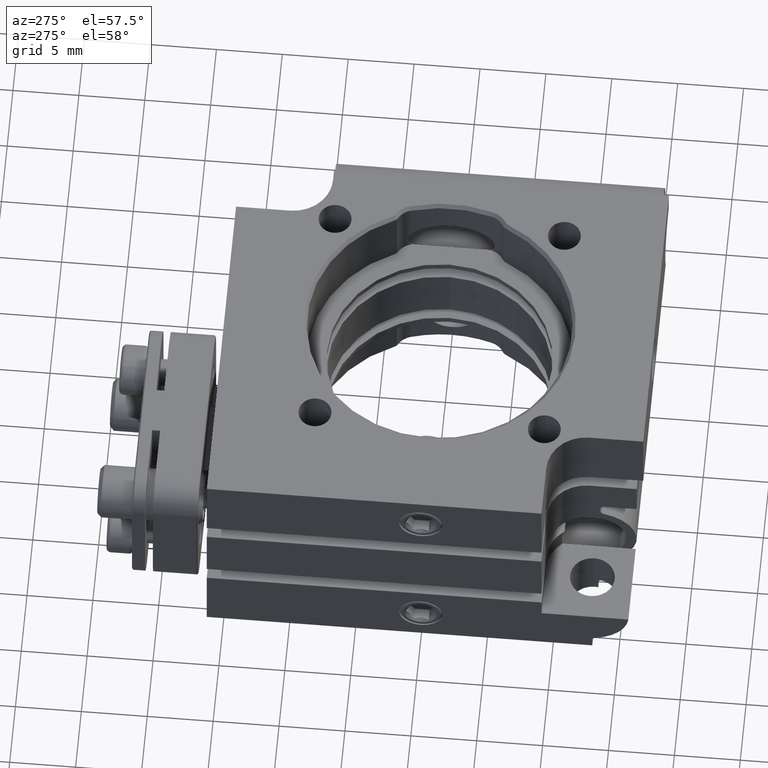
[diagram: clean part render]
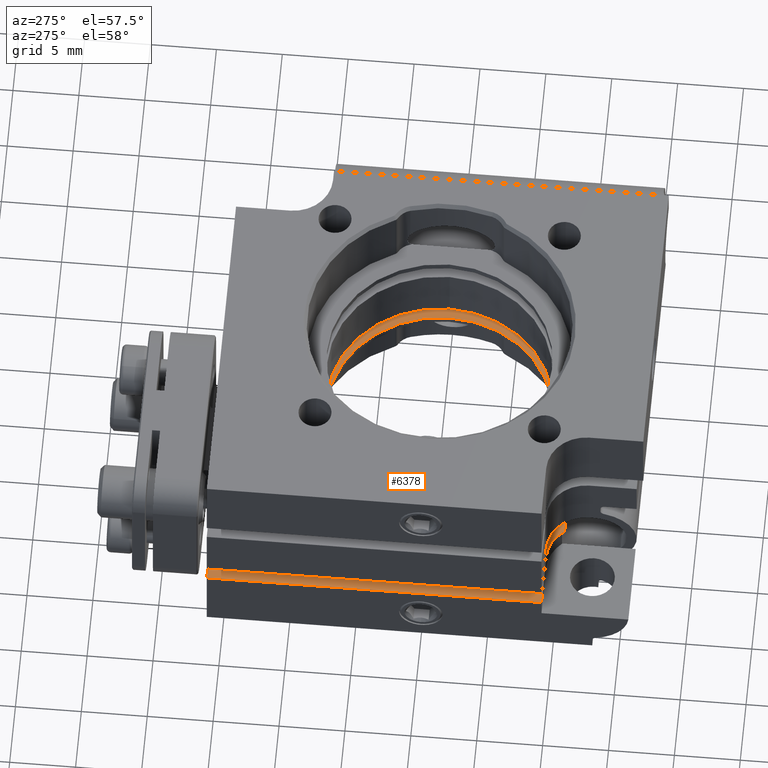
[diagram: same view with one face highlighted and labeled with its STEP entity id]
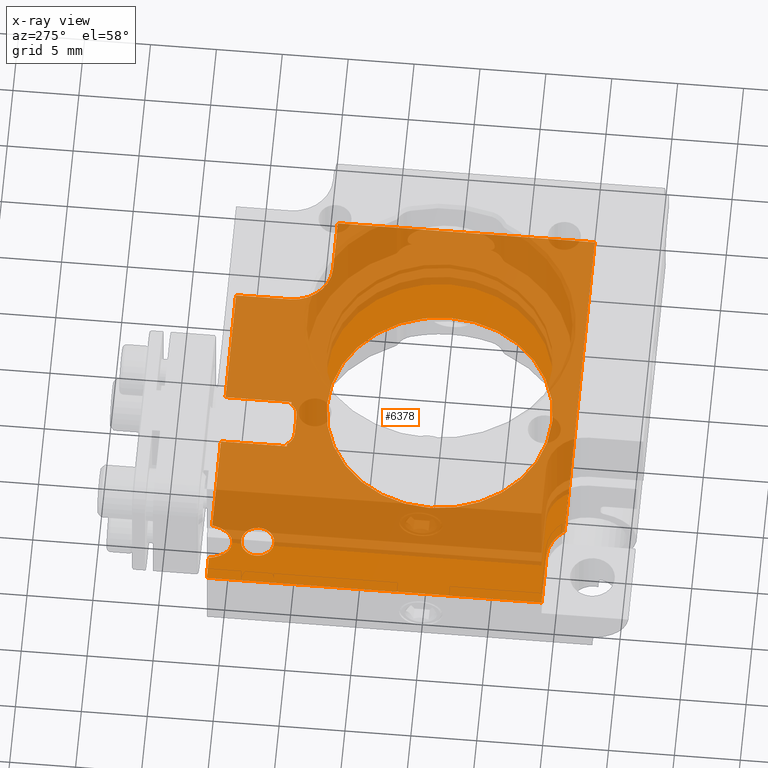
[diagram: x-ray of the same camera — body ghosted, the highlighted face saturated]
A machine part, auxiliary view. The second image highlights one B-rep face of the part: STEP entity #6378.
The next image is the same camera in x-ray: the body ghosted, the highlighted face saturated — about 75% of this face is hidden behind the body in this view.
In plain terms, the highlighted planar face has unit normal (0, -0, -1).
Its self-contained STEP definition (entity closure, byte-faithful):
#45 = CARTESIAN_POINT ( 'NONE',  ( -9.150000000000003908, -3.500000000000003109, -12.15000000000002700 ) ) ;
#68 = CIRCLE ( 'NONE', #1785, 2.999999999999999112 ) ;
#217 = DIRECTION ( 'NONE',  ( 0.000000000000000000, 0.000000000000000000, -1.000000000000000000 ) ) ;
#338 = LINE ( 'NONE', #396, #7785 ) ;
#350 = CARTESIAN_POINT ( 'NONE',  ( -10.79736198769984945, -3.500000000000000000, 3.158063285085380034 ) ) ;
#356 = CARTESIAN_POINT ( 'NONE',  ( -16.25000000000000355, -3.499999999999999556, 11.53877072225426126 ) ) ;
#381 = VERTEX_POINT ( 'NONE', #7786 ) ;
#396 = CARTESIAN_POINT ( 'NONE',  ( -16.25000000000000355, -3.499999999999999556, 16.24999999999999645 ) ) ;
#417 = CIRCLE ( 'NONE', #6857, 8.549999999999998934 ) ;
#420 = VERTEX_POINT ( 'NONE', #10959 ) ;
#783 = CARTESIAN_POINT ( 'NONE',  ( -11.25000000000000000, -3.499999999999999556, 3.992028643696709622 ) ) ;
#830 = LINE ( 'NONE', #4883, #5877 ) ;
#888 = ORIENTED_EDGE ( 'NONE', *, *, #7088, .T. ) ;
#1036 = VECTOR ( 'NONE', #10947, 1000.000000000000000 ) ;
#1070 = LINE ( 'NONE', #4112, #5826 ) ;
#1175 = CARTESIAN_POINT ( 'NONE',  ( -11.24999999999999645, -3.499999999999999556, 16.25000000000000000 ) ) ;
#1275 = LINE ( 'NONE', #8410, #11979 ) ;
#1308 = DIRECTION ( 'NONE',  ( 2.048885995248197660E-16, 0.000000000000000000, 1.000000000000000000 ) ) ;
#1323 = DIRECTION ( 'NONE',  ( 0.000000000000000000, -1.000000000000000000, 0.000000000000000000 ) ) ;
#1496 = EDGE_CURVE ( 'NONE', #13213, #8688, #5788, .T. ) ;
#1538 = AXIS2_PLACEMENT_3D ( 'NONE', #7490, #10341, #11605 ) ;
#1618 = CARTESIAN_POINT ( 'NONE',  ( -15.24786959717078716, -3.499999999999999556, 11.70308633775177576 ) ) ;
#1702 = VERTEX_POINT ( 'NONE', #45 ) ;
#1739 = ORIENTED_EDGE ( 'NONE', *, *, #4108, .T. ) ;
#1749 = VERTEX_POINT ( 'NONE', #5551 ) ;
#1774 = CARTESIAN_POINT ( 'NONE',  ( -11.25000000000000000, -3.499999999999999556, 0.007971356303282595840 ) ) ;
#1785 = AXIS2_PLACEMENT_3D ( 'NONE', #4119, #2840, #7196 ) ;
#1871 = CARTESIAN_POINT ( 'NONE',  ( -10.75000000000000000, -3.499999999999999556, 2.780624749799794238 ) ) ;
#1876 = AXIS2_PLACEMENT_3D ( 'NONE', #2717, #13127, #5949 ) ;
#1984 = VERTEX_POINT ( 'NONE', #7003 ) ;
#2069 = LINE ( 'NONE', #10082, #11569 ) ;
#2101 = CARTESIAN_POINT ( 'NONE',  ( -10.75000000000000000, -3.499999999999999556, 2.780624749799794238 ) ) ;
#2147 = VECTOR ( 'NONE', #5332, 1000.000000000000000 ) ;
#2158 = ORIENTED_EDGE ( 'NONE', *, *, #11042, .T. ) ;
#2170 = CARTESIAN_POINT ( 'NONE',  ( 0.000000000000000000, -3.499999999999999556, 0.000000000000000000 ) ) ;
#2205 = ORIENTED_EDGE ( 'NONE', *, *, #3025, .T. ) ;
#2281 = VERTEX_POINT ( 'NONE', #5650 ) ;
#2290 = DIRECTION ( 'NONE',  ( -0.000000000000000000, -0.000000000000000000, -1.000000000000000000 ) ) ;
#2300 = EDGE_CURVE ( 'NONE', #420, #8580, #13135, .T. ) ;
#2502 = CARTESIAN_POINT ( 'NONE',  ( -15.24786959717078716, -3.499999999999999556, 14.29691366224822779 ) ) ;
#2527 = VERTEX_POINT ( 'NONE', #1871 ) ;
#2583 = ORIENTED_EDGE ( 'NONE', *, *, #4746, .T. ) ;
#2717 = CARTESIAN_POINT ( 'NONE',  ( 12.49999999999999645, -3.499999999999999556, 16.24999999999999645 ) ) ;
#2719 = ORIENTED_EDGE ( 'NONE', *, *, #8835, .T. ) ;
#2762 = CARTESIAN_POINT ( 'NONE',  ( -16.25000000000000355, -3.499999999999999556, 16.24999999999999645 ) ) ;
#2782 = VERTEX_POINT ( 'NONE', #6629 ) ;
#2820 = LINE ( 'NONE', #4901, #10323 ) ;
#2840 = DIRECTION ( 'NONE',  ( 0.000000000000000000, -1.000000000000000000, 0.000000000000000000 ) ) ;
#3025 = EDGE_CURVE ( 'NONE', #8800, #1749, #830, .T. ) ;
#3187 = LINE ( 'NONE', #7273, #2147 ) ;
#3189 = CARTESIAN_POINT ( 'NONE',  ( -10.74999999999999822, -3.499999999999999112, 2.877059603855702807 ) ) ;
#3315 = CARTESIAN_POINT ( 'NONE',  ( -11.25000000000000000, -3.499999999999999556, 3.758245093145110349 ) ) ;
#3532 = EDGE_CURVE ( 'NONE', #12448, #2281, #11652, .T. ) ;
#3548 = CARTESIAN_POINT ( 'NONE',  ( -11.25000000000000000, -3.499999999999999556, 0.2417549068548774938 ) ) ;
#3730 = FACE_OUTER_BOUND ( 'NONE', #4603, .T. ) ;
#3842 = CIRCLE ( 'NONE', #4693, 2.999999999999995559 ) ;
#4041 = EDGE_CURVE ( 'NONE', #13213, #5036, #10017, .T. ) ;
#4066 = CARTESIAN_POINT ( 'NONE',  ( -10.75000000000000000, -3.499999999999999556, 16.25000000000000355 ) ) ;
#4108 = EDGE_CURVE ( 'NONE', #1702, #8800, #68, .T. ) ;
#4112 = CARTESIAN_POINT ( 'NONE',  ( 12.49999999999999645, -3.499999999999999556, -16.25000000000000355 ) ) ;
#4119 = CARTESIAN_POINT ( 'NONE',  ( -12.15000000000000391, -3.499999999999999556, -12.15000000000000391 ) ) ;
#4165 = CIRCLE ( 'NONE', #7576, 1.249999999999999334 ) ;
#4262 = EDGE_CURVE ( 'NONE', #8712, #6261, #338, .T. ) ;
#4472 =( BOUNDED_CURVE ( )  B_SPLINE_CURVE ( 3, ( #10695, #4582, #2502, #4522 ),
 .UNSPECIFIED., .F., .F. ) 
 B_SPLINE_CURVE_WITH_KNOTS ( ( 4, 4 ),
 ( 3.141592653589793116, 4.484532587413856852 ),
 .UNSPECIFIED. ) 
 CURVE ( )  GEOMETRIC_REPRESENTATION_ITEM ( )  RATIONAL_B_SPLINE_CURVE ( ( 1.000000000000000000, 0.8552719936759789476, 0.8552719936759789476, 1.000000000000000000 ) ) 
 REPRESENTATION_ITEM ( '' )  );
#4501 = EDGE_LOOP ( 'NONE', ( #8461, #11813 ) ) ;
#4522 = CARTESIAN_POINT ( 'NONE',  ( -16.25000000000000355, -3.499999999999999556, 14.46122927774574052 ) ) ;
#4582 = CARTESIAN_POINT ( 'NONE',  ( -14.60786437626907563, -3.499999999999999556, 13.72741480163222505 ) ) ;
#4603 = EDGE_LOOP ( 'NONE', ( #4657, #2719, #1739, #2205, #12362, #7795, #12668, #5175, #7114, #8121, #6622, #10608, #7075, #9601, #9843, #6924, #12896, #2158, #5309, #2583 ) ) ;
#4626 = DIRECTION ( 'NONE',  ( 1.692413147294458000E-15, 0.000000000000000000, -1.000000000000000000 ) ) ;
#4657 = ORIENTED_EDGE ( 'NONE', *, *, #10783, .T. ) ;
#4669 = DIRECTION ( 'NONE',  ( 1.000000000000000000, 0.000000000000000000, -2.048885995248197660E-16 ) ) ;
#4693 = AXIS2_PLACEMENT_3D ( 'NONE', #8517, #1323, #7440 ) ;
#4746 = EDGE_CURVE ( 'NONE', #1984, #12991, #1275, .T. ) ;
#4801 = EDGE_LOOP ( 'NONE', ( #888, #12503 ) ) ;
#4856 = CARTESIAN_POINT ( 'NONE',  ( 1.047073013270986818E-15, -3.499999999999999556, -8.549999999999998934 ) ) ;
#4870 = CARTESIAN_POINT ( 'NONE',  ( 0.000000000000000000, -3.499999999999999556, 0.000000000000000000 ) ) ;
#4883 = CARTESIAN_POINT ( 'NONE',  ( 12.49999999999999645, -3.499999999999999556, -9.150000000000005684 ) ) ;
#4897 = DIRECTION ( 'NONE',  ( -1.000000000000000000, -0.000000000000000000, 2.048885995248197660E-16 ) ) ;
#4901 = CARTESIAN_POINT ( 'NONE',  ( 9.149999999999995026, -3.499999999999999556, 16.24999999999998934 ) ) ;
#5036 = VERTEX_POINT ( 'NONE', #8938 ) ;
#5047 = EDGE_CURVE ( 'NONE', #11789, #8712, #11953, .T. ) ;
#5175 = ORIENTED_EDGE ( 'NONE', *, *, #7799, .T. ) ;
#5309 = ORIENTED_EDGE ( 'NONE', *, *, #7990, .T. ) ;
#5332 = DIRECTION ( 'NONE',  ( -0.000000000000000000, -0.000000000000000000, -1.000000000000000000 ) ) ;
#5375 = AXIS2_PLACEMENT_3D ( 'NONE', #4870, #7872, #8962 ) ;
#5398 = VECTOR ( 'NONE', #9198, 1000.000000000000000 ) ;
#5545 = CARTESIAN_POINT ( 'NONE',  ( -16.25000000000000355, -3.499999999999999556, 14.46122927774574052 ) ) ;
#5551 = CARTESIAN_POINT ( 'NONE',  ( -16.25000000000000355, -3.500000000000003109, -9.150000000000005684 ) ) ;
#5563 = CARTESIAN_POINT ( 'NONE',  ( -10.75853433984306484, -3.500000000000000444, 1.027957978442316733 ) ) ;
#5650 = CARTESIAN_POINT ( 'NONE',  ( -12.70000000000000107, -3.499999999999999556, 11.44999999999999929 ) ) ;
#5655 = LINE ( 'NONE', #7798, #11795 ) ;
#5788 = LINE ( 'NONE', #9901, #5398 ) ;
#5826 = VECTOR ( 'NONE', #7187, 1000.000000000000000 ) ;
#5864 = CARTESIAN_POINT ( 'NONE',  ( -12.15000000000002522, -3.499999999999999556, -9.150000000000005684 ) ) ;
#5877 = VECTOR ( 'NONE', #9100, 1000.000000000000000 ) ;
#5896 = VERTEX_POINT ( 'NONE', #8809 ) ;
#5931 = CARTESIAN_POINT ( 'NONE',  ( -16.25000000000000000, -3.499999999999999556, 0.007971356303283626266 ) ) ;
#5949 = DIRECTION ( 'NONE',  ( 0.000000000000000000, -0.000000000000000000, -1.000000000000000000 ) ) ;
#6053 = CARTESIAN_POINT ( 'NONE',  ( 12.49999999999999645, -3.499999999999999556, 16.24999999999999645 ) ) ;
#6213 = CARTESIAN_POINT ( 'NONE',  ( -11.08573227961132446, -3.499999999999999112, 3.657591393914076061 ) ) ;
#6261 = VERTEX_POINT ( 'NONE', #5545 ) ;
#6378 = ADVANCED_FACE ( 'NONE', ( #3730, #8965, #6879 ), #8002, .F. ) ;
#6526 = DIRECTION ( 'NONE',  ( -0.000000000000000000, -0.000000000000000000, -1.000000000000000000 ) ) ;
#6580 = CARTESIAN_POINT ( 'NONE',  ( -11.08739585701872699, -3.500000000000000444, 0.3413892626652276219 ) ) ;
#6622 = ORIENTED_EDGE ( 'NONE', *, *, #1496, .F. ) ;
#6629 = CARTESIAN_POINT ( 'NONE',  ( -11.25000000000000000, -3.499999999999999556, 0.007971356303282595840 ) ) ;
#6685 = CARTESIAN_POINT ( 'NONE',  ( 9.150000000000002132, -3.500000000000003109, 12.15000000000003233 ) ) ;
#6818 = DIRECTION ( 'NONE',  ( 0.000000000000000000, 0.000000000000000000, -1.000000000000000000 ) ) ;
#6857 = AXIS2_PLACEMENT_3D ( 'NONE', #2170, #8491, #217 ) ;
#6861 = B_SPLINE_CURVE_WITH_KNOTS ( 'NONE', 3,
 ( #2101, #3189, #9288, #350, #7416, #8425, #6213, #7471 ),
 .UNSPECIFIED., .F., .F.,
 ( 4, 2, 2, 4 ),
 ( 4.336808689942017736E-19, 0.0002849609944708578852, 0.0005699219889417153368, 0.001139843977883430240 ),
 .UNSPECIFIED. ) ;
#6879 = FACE_BOUND ( 'NONE', #4801, .T. ) ;
#6895 = EDGE_CURVE ( 'NONE', #8460, #5896, #10324, .T. ) ;
#6924 = ORIENTED_EDGE ( 'NONE', *, *, #4262, .F. ) ;
#7003 = CARTESIAN_POINT ( 'NONE',  ( 10.33493649053889918, -3.499999999999998668, 9.761371846305351596 ) ) ;
#7030 = CARTESIAN_POINT ( 'NONE',  ( -10.75000000000000000, -3.500000000000000000, 1.123121447358609304 ) ) ;
#7068 = EDGE_CURVE ( 'NONE', #420, #5036, #3187, .T. ) ;
#7075 = ORIENTED_EDGE ( 'NONE', *, *, #7068, .F. ) ;
#7088 = EDGE_CURVE ( 'NONE', #5896, #8460, #417, .T. ) ;
#7114 = ORIENTED_EDGE ( 'NONE', *, *, #13238, .F. ) ;
#7187 = DIRECTION ( 'NONE',  ( -1.000000000000000000, 0.000000000000000000, 0.000000000000000000 ) ) ;
#7196 = DIRECTION ( 'NONE',  ( 0.000000000000000000, 0.000000000000000000, -1.000000000000000000 ) ) ;
#7273 = CARTESIAN_POINT ( 'NONE',  ( -16.25000000000000355, -3.499999999999999556, 16.24999999999999645 ) ) ;
#7327 = VECTOR ( 'NONE', #1308, 1000.000000000000000 ) ;
#7416 = CARTESIAN_POINT ( 'NONE',  ( -10.82817703977339008, -3.499999999999999112, 3.250608909671511171 ) ) ;
#7440 = DIRECTION ( 'NONE',  ( 0.000000000000000000, 0.000000000000000000, -1.000000000000000000 ) ) ;
#7471 = CARTESIAN_POINT ( 'NONE',  ( -11.25000000000000000, -3.499999999999999556, 3.758245093145110349 ) ) ;
#7476 = CARTESIAN_POINT ( 'NONE',  ( -14.60786437626907208, -3.499999999999999556, 13.00000000000000178 ) ) ;
#7490 = CARTESIAN_POINT ( 'NONE',  ( -12.70000000000000107, -3.499999999999999556, 12.69999999999999929 ) ) ;
#7576 = AXIS2_PLACEMENT_3D ( 'NONE', #9719, #12870, #6818 ) ;
#7661 = B_SPLINE_CURVE_WITH_KNOTS ( 'NONE', 3,
 ( #3548, #6580, #10674, #11424, #11486, #5563, #7030, #9042 ),
 .UNSPECIFIED., .F., .F.,
 ( 4, 2, 2, 4 ),
 ( 0.0005238964188724739646, 0.001095251628457767374, 0.001380929233250414567, 0.001666606838043061325 ),
 .UNSPECIFIED. ) ;
#7718 = VERTEX_POINT ( 'NONE', #11229 ) ;
#7785 = VECTOR ( 'NONE', #6526, 1000.000000000000000 ) ;
#7786 = CARTESIAN_POINT ( 'NONE',  ( -11.25000000000000000, -3.499999999999999556, 0.2417549068548774938 ) ) ;
#7795 = ORIENTED_EDGE ( 'NONE', *, *, #13087, .T. ) ;
#7798 = CARTESIAN_POINT ( 'NONE',  ( -9.149999999999991473, -3.499999999999999556, 16.25000000000000711 ) ) ;
#7799 = EDGE_CURVE ( 'NONE', #381, #10631, #7661, .T. ) ;
#7815 = VECTOR ( 'NONE', #12193, 1000.000000000000000 ) ;
#7872 = DIRECTION ( 'NONE',  ( 0.000000000000000000, -1.000000000000000000, 0.000000000000000000 ) ) ;
#7990 = EDGE_CURVE ( 'NONE', #10262, #1984, #3842, .T. ) ;
#8002 = PLANE ( 'NONE',  #1876 ) ;
#8121 = ORIENTED_EDGE ( 'NONE', *, *, #12133, .T. ) ;
#8300 = CARTESIAN_POINT ( 'NONE',  ( 9.149999999999995026, -3.500000000000003109, 16.25000000000000355 ) ) ;
#8410 = CARTESIAN_POINT ( 'NONE',  ( 10.33493649053890096, -3.499999999999999556, 16.24999999999999645 ) ) ;
#8425 = CARTESIAN_POINT ( 'NONE',  ( -10.95460528604543526, -3.499999999999999112, 3.508772448822807810 ) ) ;
#8460 = VERTEX_POINT ( 'NONE', #4856 ) ;
#8461 = ORIENTED_EDGE ( 'NONE', *, *, #11455, .T. ) ;
#8491 = DIRECTION ( 'NONE',  ( 0.000000000000000000, -1.000000000000000000, 0.000000000000000000 ) ) ;
#8517 = CARTESIAN_POINT ( 'NONE',  ( 12.14999999999999503, -3.499999999999999556, 12.15000000000000746 ) ) ;
#8580 = VERTEX_POINT ( 'NONE', #10294 ) ;
#8688 = VERTEX_POINT ( 'NONE', #3315 ) ;
#8712 = VERTEX_POINT ( 'NONE', #2762 ) ;
#8800 = VERTEX_POINT ( 'NONE', #5864 ) ;
#8809 = CARTESIAN_POINT ( 'NONE',  ( 0.000000000000000000, -3.499999999999999556, 8.549999999999998934 ) ) ;
#8835 = EDGE_CURVE ( 'NONE', #7718, #1702, #5655, .T. ) ;
#8938 = CARTESIAN_POINT ( 'NONE',  ( -16.25000000000000000, -3.499999999999999556, 3.992028643696710510 ) ) ;
#8962 = DIRECTION ( 'NONE',  ( 0.000000000000000000, 0.000000000000000000, -1.000000000000000000 ) ) ;
#8965 = FACE_BOUND ( 'NONE', #4501, .T. ) ;
#9042 = CARTESIAN_POINT ( 'NONE',  ( -10.75000000000000000, -3.499999999999999556, 1.219375250200193106 ) ) ;
#9100 = DIRECTION ( 'NONE',  ( -1.000000000000000000, 0.000000000000000000, 0.000000000000000000 ) ) ;
#9112 = VECTOR ( 'NONE', #4669, 1000.000000000000000 ) ;
#9198 = DIRECTION ( 'NONE',  ( -2.048885995248197660E-16, 0.000000000000000000, -1.000000000000000000 ) ) ;
#9288 = CARTESIAN_POINT ( 'NONE',  ( -10.75858494642404217, -3.499999999999999112, 2.971989820509628899 ) ) ;
#9601 = ORIENTED_EDGE ( 'NONE', *, *, #2300, .T. ) ;
#9701 = CARTESIAN_POINT ( 'NONE',  ( -10.75000000000000000, -3.499999999999999556, 1.219375250200193106 ) ) ;
#9719 = CARTESIAN_POINT ( 'NONE',  ( -12.70000000000000107, -3.499999999999999556, 12.69999999999999929 ) ) ;
#9822 = CARTESIAN_POINT ( 'NONE',  ( -12.70000000000000107, -3.499999999999999556, 13.94999999999999929 ) ) ;
#9843 = ORIENTED_EDGE ( 'NONE', *, *, #12337, .T. ) ;
#9901 = CARTESIAN_POINT ( 'NONE',  ( -11.24999999999999645, -3.499999999999999556, 16.25000000000000000 ) ) ;
#9979 = DIRECTION ( 'NONE',  ( 4.231032868236139083E-16, 0.000000000000000000, 1.000000000000000000 ) ) ;
#10017 = LINE ( 'NONE', #783, #13164 ) ;
#10082 = CARTESIAN_POINT ( 'NONE',  ( -16.25000000000000355, -3.499999999999999556, 16.24999999999999645 ) ) ;
#10262 = VERTEX_POINT ( 'NONE', #6685 ) ;
#10294 = CARTESIAN_POINT ( 'NONE',  ( -14.60786437626907208, -3.499999999999999556, 13.00000000000000178 ) ) ;
#10323 = VECTOR ( 'NONE', #4626, 1000.000000000000000 ) ;
#10324 = CIRCLE ( 'NONE', #5375, 8.549999999999998934 ) ;
#10341 = DIRECTION ( 'NONE',  ( 0.000000000000000000, -1.000000000000000000, 0.000000000000000000 ) ) ;
#10545 = EDGE_CURVE ( 'NONE', #2782, #381, #12605, .T. ) ;
#10608 = ORIENTED_EDGE ( 'NONE', *, *, #4041, .T. ) ;
#10631 = VERTEX_POINT ( 'NONE', #9701 ) ;
#10674 = CARTESIAN_POINT ( 'NONE',  ( -10.95447279845988220, -3.499999999999999556, 0.4916543691654434722 ) ) ;
#10695 = CARTESIAN_POINT ( 'NONE',  ( -14.60786437626907208, -3.499999999999999556, 13.00000000000000178 ) ) ;
#10783 = EDGE_CURVE ( 'NONE', #12991, #7718, #1070, .T. ) ;
#10947 = DIRECTION ( 'NONE',  ( -1.000000000000000000, 0.000000000000000000, 0.000000000000000000 ) ) ;
#10959 = CARTESIAN_POINT ( 'NONE',  ( -16.25000000000000355, -3.499999999999999556, 11.53877072225426126 ) ) ;
#11042 = EDGE_CURVE ( 'NONE', #11789, #10262, #2820, .T. ) ;
#11134 = EDGE_CURVE ( 'NONE', #12543, #1749, #2069, .T. ) ;
#11229 = CARTESIAN_POINT ( 'NONE',  ( -9.150000000000005684, -3.500000000000003109, -16.25000000000000355 ) ) ;
#11285 = DIRECTION ( 'NONE',  ( -0.000000000000000000, -0.000000000000000000, -1.000000000000000000 ) ) ;
#11424 = CARTESIAN_POINT ( 'NONE',  ( -10.82850118901934167, -3.499999999999999556, 0.7486512842028466563 ) ) ;
#11455 = EDGE_CURVE ( 'NONE', #2281, #12448, #4165, .T. ) ;
#11486 = CARTESIAN_POINT ( 'NONE',  ( -10.79773209055081828, -3.499999999999999556, 0.8404582161515737893 ) ) ;
#11569 = VECTOR ( 'NONE', #11285, 1000.000000000000000 ) ;
#11605 = DIRECTION ( 'NONE',  ( 0.000000000000000000, 0.000000000000000000, -1.000000000000000000 ) ) ;
#11652 = CIRCLE ( 'NONE', #1538, 1.249999999999999334 ) ;
#11661 = CARTESIAN_POINT ( 'NONE',  ( 10.33493649053890096, -3.499999999999999556, -16.25000000000000355 ) ) ;
#11789 = VERTEX_POINT ( 'NONE', #8300 ) ;
#11795 = VECTOR ( 'NONE', #9979, 1000.000000000000000 ) ;
#11813 = ORIENTED_EDGE ( 'NONE', *, *, #3532, .T. ) ;
#11923 = LINE ( 'NONE', #1774, #9112 ) ;
#11953 = LINE ( 'NONE', #6053, #1036 ) ;
#11979 = VECTOR ( 'NONE', #2290, 1000.000000000000000 ) ;
#11993 = CARTESIAN_POINT ( 'NONE',  ( -11.25000000000000000, -3.499999999999999556, 3.992028643696709622 ) ) ;
#12133 = EDGE_CURVE ( 'NONE', #2527, #8688, #6861, .T. ) ;
#12193 = DIRECTION ( 'NONE',  ( -2.521891145899204436E-16, 0.000000000000000000, -1.000000000000000000 ) ) ;
#12259 = LINE ( 'NONE', #4066, #7815 ) ;
#12337 = EDGE_CURVE ( 'NONE', #8580, #6261, #4472, .T. ) ;
#12362 = ORIENTED_EDGE ( 'NONE', *, *, #11134, .F. ) ;
#12448 = VERTEX_POINT ( 'NONE', #9822 ) ;
#12503 = ORIENTED_EDGE ( 'NONE', *, *, #6895, .T. ) ;
#12543 = VERTEX_POINT ( 'NONE', #5931 ) ;
#12605 = LINE ( 'NONE', #1175, #7327 ) ;
#12655 = CARTESIAN_POINT ( 'NONE',  ( -14.60786437626907563, -3.499999999999999556, 12.27258519836777673 ) ) ;
#12668 = ORIENTED_EDGE ( 'NONE', *, *, #10545, .T. ) ;
#12870 = DIRECTION ( 'NONE',  ( 0.000000000000000000, -1.000000000000000000, 0.000000000000000000 ) ) ;
#12896 = ORIENTED_EDGE ( 'NONE', *, *, #5047, .F. ) ;
#12991 = VERTEX_POINT ( 'NONE', #11661 ) ;
#13087 = EDGE_CURVE ( 'NONE', #12543, #2782, #11923, .T. ) ;
#13127 = DIRECTION ( 'NONE',  ( 0.000000000000000000, -1.000000000000000000, 0.000000000000000000 ) ) ;
#13135 =( BOUNDED_CURVE ( )  B_SPLINE_CURVE ( 3, ( #356, #1618, #12655, #7476 ),
 .UNSPECIFIED., .F., .T. ) 
 B_SPLINE_CURVE_WITH_KNOTS ( ( 4, 4 ),
 ( 1.798652719765729824, 3.141592653589793116 ),
 .UNSPECIFIED. ) 
 CURVE ( )  GEOMETRIC_REPRESENTATION_ITEM ( )  RATIONAL_B_SPLINE_CURVE ( ( 1.000000000000000000, 0.8552719936759789476, 0.8552719936759789476, 1.000000000000000000 ) ) 
 REPRESENTATION_ITEM ( '' )  );
#13164 = VECTOR ( 'NONE', #4897, 1000.000000000000000 ) ;
#13213 = VERTEX_POINT ( 'NONE', #11993 ) ;
#13238 = EDGE_CURVE ( 'NONE', #2527, #10631, #12259, .T. ) ;